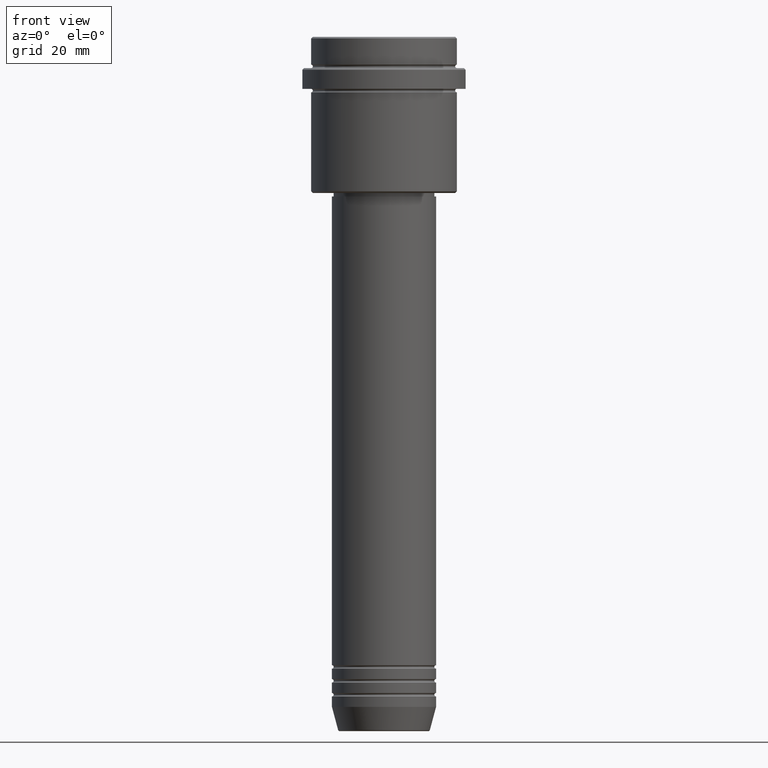
[diagram: clean part render]
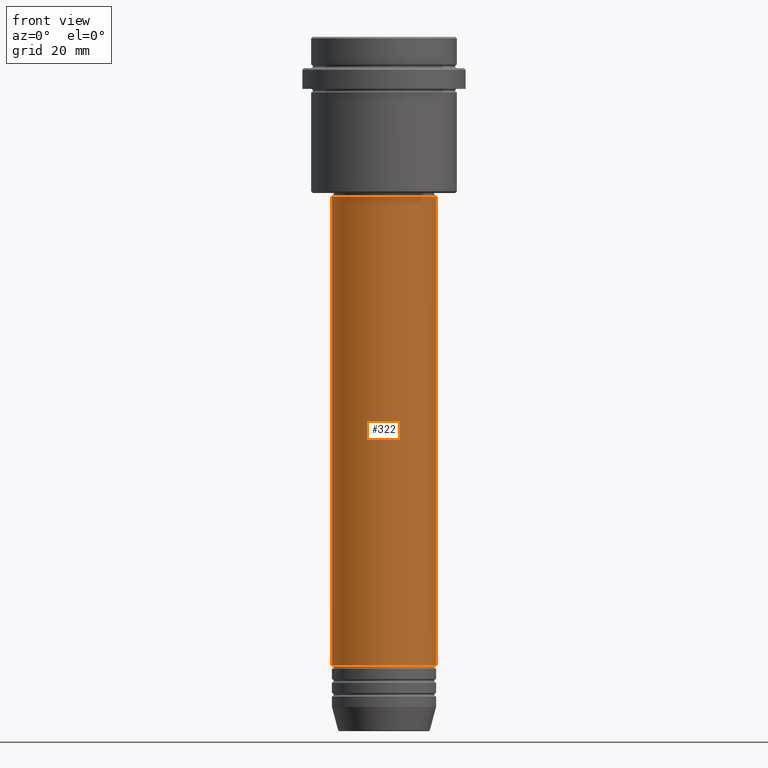
[diagram: same view with one face highlighted and labeled with its STEP entity id]
A machine part, front view. The second image highlights one B-rep face of the part: STEP entity #322.
In plain terms, the highlighted cylindrical surface (partial cylindrical patch) has radius 15 mm, axis along (-0, -0, 1).
Its self-contained STEP definition (entity closure, byte-faithful):
#46 = VERTEX_POINT ( 'NONE', #107 ) ;
#107 = CARTESIAN_POINT ( 'NONE',  ( -15.00000000000000000, 1.836970198721029589E-15, -46.00000000000001421 ) ) ;
#156 = CARTESIAN_POINT ( 'NONE',  ( 0.000000000000000000, 0.000000000000000000, -46.00000000000001421 ) ) ;
#256 = DIRECTION ( 'NONE',  ( 1.000000000000000000, 0.000000000000000000, 0.000000000000000000 ) ) ;
#311 = DIRECTION ( 'NONE',  ( -0.000000000000000000, -0.000000000000000000, 1.000000000000000000 ) ) ;
#322 = ADVANCED_FACE ( 'NONE', ( #925 ), #1161, .T. ) ;
#340 = DIRECTION ( 'NONE',  ( -0.000000000000000000, -0.000000000000000000, 1.000000000000000000 ) ) ;
#349 = EDGE_LOOP ( 'NONE', ( #1335, #358, #1110, #593 ) ) ;
#358 = ORIENTED_EDGE ( 'NONE', *, *, #700, .T. ) ;
#418 = CARTESIAN_POINT ( 'NONE',  ( -15.00000000000000000, 1.836970198721029589E-15, -180.9999999999998863 ) ) ;
#481 = DIRECTION ( 'NONE',  ( -0.000000000000000000, -0.000000000000000000, 1.000000000000000000 ) ) ;
#550 = VERTEX_POINT ( 'NONE', #418 ) ;
#593 = ORIENTED_EDGE ( 'NONE', *, *, #859, .F. ) ;
#621 = AXIS2_PLACEMENT_3D ( 'NONE', #1366, #1029, #1145 ) ;
#624 = AXIS2_PLACEMENT_3D ( 'NONE', #156, #481, #256 ) ;
#700 = EDGE_CURVE ( 'NONE', #550, #1265, #1132, .T. ) ;
#711 = VERTEX_POINT ( 'NONE', #1225 ) ;
#758 = DIRECTION ( 'NONE',  ( 1.000000000000000000, 0.000000000000000000, 0.000000000000000000 ) ) ;
#779 = DIRECTION ( 'NONE',  ( -0.000000000000000000, -0.000000000000000000, 1.000000000000000000 ) ) ;
#859 = EDGE_CURVE ( 'NONE', #46, #711, #996, .T. ) ;
#925 = FACE_OUTER_BOUND ( 'NONE', #349, .T. ) ;
#976 = VECTOR ( 'NONE', #311, 1000.000000000000000 ) ;
#990 = EDGE_CURVE ( 'NONE', #550, #46, #1196, .T. ) ;
#996 = CIRCLE ( 'NONE', #624, 15.00000000000000000 ) ;
#1003 = CARTESIAN_POINT ( 'NONE',  ( 0.000000000000000000, 0.000000000000000000, -180.9999999999998863 ) ) ;
#1010 = CARTESIAN_POINT ( 'NONE',  ( 15.00000000000000000, 0.000000000000000000, -180.9999999999998863 ) ) ;
#1029 = DIRECTION ( 'NONE',  ( -0.000000000000000000, -0.000000000000000000, 1.000000000000000000 ) ) ;
#1096 = LINE ( 'NONE', #1312, #1207 ) ;
#1110 = ORIENTED_EDGE ( 'NONE', *, *, #1117, .T. ) ;
#1117 = EDGE_CURVE ( 'NONE', #1265, #711, #1096, .T. ) ;
#1132 = CIRCLE ( 'NONE', #1363, 15.00000000000000000 ) ;
#1145 = DIRECTION ( 'NONE',  ( 1.000000000000000000, 0.000000000000000000, 0.000000000000000000 ) ) ;
#1161 = CYLINDRICAL_SURFACE ( 'NONE', #621, 15.00000000000000000 ) ;
#1180 = CARTESIAN_POINT ( 'NONE',  ( -15.00000000000000000, 1.836970198721029589E-15, 0.000000000000000000 ) ) ;
#1196 = LINE ( 'NONE', #1180, #976 ) ;
#1207 = VECTOR ( 'NONE', #340, 1000.000000000000000 ) ;
#1225 = CARTESIAN_POINT ( 'NONE',  ( 15.00000000000000000, 0.000000000000000000, -46.00000000000001421 ) ) ;
#1265 = VERTEX_POINT ( 'NONE', #1010 ) ;
#1312 = CARTESIAN_POINT ( 'NONE',  ( 15.00000000000000000, 0.000000000000000000, 0.000000000000000000 ) ) ;
#1335 = ORIENTED_EDGE ( 'NONE', *, *, #990, .F. ) ;
#1363 = AXIS2_PLACEMENT_3D ( 'NONE', #1003, #779, #758 ) ;
#1366 = CARTESIAN_POINT ( 'NONE',  ( 0.000000000000000000, 0.000000000000000000, 0.000000000000000000 ) ) ;